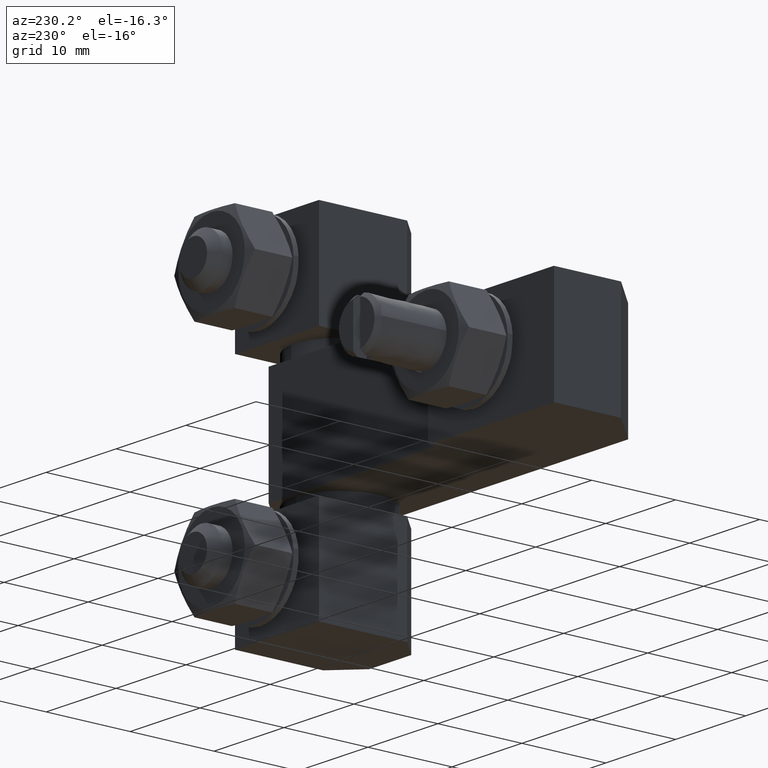
[diagram: clean part render]
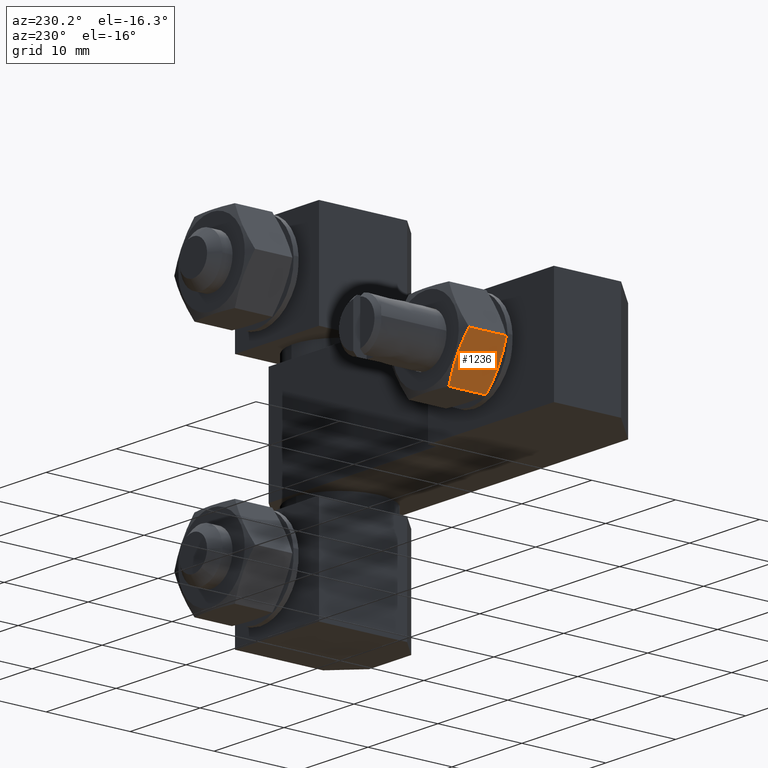
[diagram: same view with one face highlighted and labeled with its STEP entity id]
A machine part, auxiliary view. The second image highlights one B-rep face of the part: STEP entity #1236.
In plain terms, the highlighted face is a freeform B-spline surface patch.
Its self-contained STEP definition (entity closure, byte-faithful):
#552=CARTESIAN_POINT('',(5.773503748775600,10.472525037198819,6.000002996173530));
#553=VERTEX_POINT('',#552);
#563=CARTESIAN_POINT('',(2.886749526428685,10.472525037198780,11.000002555863720));
#564=VERTEX_POINT('',#563);
#565=CARTESIAN_POINT('',(2.886749526428685,10.472525037198780,11.000002555863720));
#566=CARTESIAN_POINT('',(3.127312377210939,10.384967391259440,10.583335927760141));
#567=CARTESIAN_POINT('',(3.367875228196240,10.313871260334480,10.166669299304880));
#568=CARTESIAN_POINT('',(3.849000930722583,10.216734745318680,9.333336041431767));
#569=CARTESIAN_POINT('',(4.330126633812041,10.165251203605809,8.500002782583314));
#570=CARTESIAN_POINT('',(4.811252338171554,10.216734701043331,7.666669521535040));
#571=CARTESIAN_POINT('',(5.292378043094181,10.313871209053470,6.833336259511419));
#572=CARTESIAN_POINT('',(5.532940895833367,10.384967354865481,6.416669628018321));
#573=CARTESIAN_POINT('',(5.773503748775600,10.472525037198819,6.000002996173530));
#574=B_SPLINE_CURVE_WITH_KNOTS('',3,(#565,#566,#567,#568,#569,#570,#571,#572,#573),.UNSPECIFIED.,.F.,.U.,(4,2,1,2,4),(0.0,0.250000000000000,0.500000000000000,0.750000000000000,1.0),.UNSPECIFIED.);
#575=EDGE_CURVE('',#564,#553,#574,.T.);
#895=CARTESIAN_POINT('',(2.886749526428700,14.927476028979500,11.000002555863700));
#896=VERTEX_POINT('',#895);
#914=CARTESIAN_POINT('',(5.773503748775569,14.927476028979500,6.000002996173490));
#915=VERTEX_POINT('',#914);
#916=CARTESIAN_POINT('',(5.773503748775569,14.927476028979500,6.000002996173490));
#917=CARTESIAN_POINT('',(5.532940895833342,15.015033711312830,6.416669628018281));
#918=CARTESIAN_POINT('',(5.292378043094161,15.086129857124851,6.833336259511384));
#919=CARTESIAN_POINT('',(4.811252338171538,15.183266365134980,7.666669521535003));
#920=CARTESIAN_POINT('',(4.330126633812032,15.234749861806490,8.500002782583282));
#921=CARTESIAN_POINT('',(3.849000930722585,15.183266320859611,9.333336041431741));
#922=CARTESIAN_POINT('',(3.367875228196246,15.086129805843809,10.166669299304861));
#923=CARTESIAN_POINT('',(3.127312377210950,15.015033674918840,10.583335927760119));
#924=CARTESIAN_POINT('',(2.886749526428700,14.927476028979500,11.000002555863700));
#925=B_SPLINE_CURVE_WITH_KNOTS('',3,(#916,#917,#918,#919,#920,#921,#922,#923,#924),.UNSPECIFIED.,.F.,.U.,(4,2,1,2,4),(0.0,0.250000000000000,0.500000000000000,0.750000000000000,1.0),.UNSPECIFIED.);
#926=EDGE_CURVE('',#915,#896,#925,.T.);
#1208=CARTESIAN_POINT('',(5.773503748775569,14.927476028979500,6.000002996173490));
#1209=CARTESIAN_POINT('',(5.773503748775600,10.472525037198819,6.000002996173530));
#1210=QUASI_UNIFORM_CURVE('',1,(#1208,#1209),.UNSPECIFIED.,.F.,.U.);
#1211=EDGE_CURVE('',#915,#553,#1210,.T.);
#1221=CARTESIAN_POINT('',(5.917694732643805,9.940343446664572,5.750251463742131));
#1222=CARTESIAN_POINT('',(2.742556194601803,9.940343446664572,11.249752732700520));
#1223=CARTESIAN_POINT('',(5.917694732643805,15.459658067776241,5.750251463742131));
#1224=CARTESIAN_POINT('',(2.742556194601803,15.459658067776241,11.249752732700520));
#1225=B_SPLINE_SURFACE_WITH_KNOTS('',1,1,((#1221,#1223),(#1222,#1224)),.UNSPECIFIED.,.F.,.F.,.U.,(2,2),(2,2),(0.0,6.350277076083723),(0.0,5.519314621111667),.UNSPECIFIED.);
#1226=CARTESIAN_POINT('',(2.886749526428700,14.927476028979500,11.000002555863700));
#1227=CARTESIAN_POINT('',(2.886749526428685,10.472525037198780,11.000002555863720));
#1228=QUASI_UNIFORM_CURVE('',1,(#1226,#1227),.UNSPECIFIED.,.F.,.U.);
#1229=EDGE_CURVE('',#896,#564,#1228,.T.);
#1230=ORIENTED_EDGE('',*,*,#1229,.T.);
#1231=ORIENTED_EDGE('',*,*,#575,.T.);
#1232=ORIENTED_EDGE('',*,*,#1211,.F.);
#1233=ORIENTED_EDGE('',*,*,#926,.T.);
#1234=EDGE_LOOP('',(#1230,#1231,#1232,#1233));
#1235=FACE_OUTER_BOUND('',#1234,.T.);
#1236=ADVANCED_FACE('',(#1235),#1225,.F.);